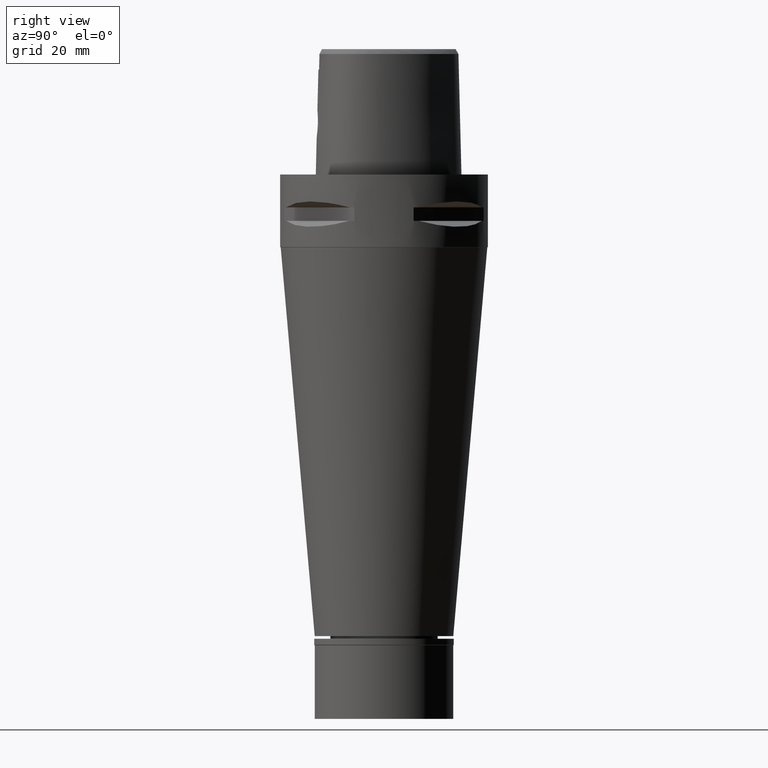
[diagram: clean part render]
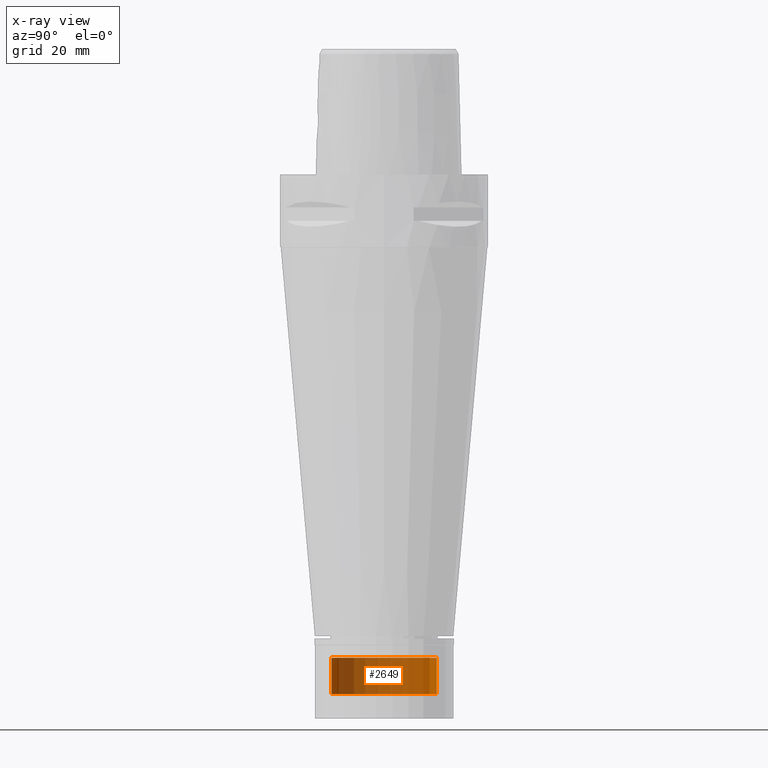
[diagram: x-ray — body ghosted, one internal face saturated and labeled with its STEP entity id]
A machine part, right view, then the same camera in x-ray: the body is ghosted and one INTERNAL B-rep face — a face not visible from any outside direction — is saturated and labeled: STEP entity #2649.
In plain terms, the highlighted cylindrical surface (partial cylindrical patch) has radius 16 mm, axis along (0, 0, -1).
Its self-contained STEP definition (entity closure, byte-faithful):
#70 = DIRECTION ( 'NONE',  ( 0.0000000000000000000, 0.0000000000000000000, -1.000000000000000000 ) ) ;
#265 = FACE_OUTER_BOUND ( 'NONE', #2853, .T. ) ;
#269 = CARTESIAN_POINT ( 'NONE',  ( 0.0000000000000000000, 16.00000000000000000, -146.5000000000000000 ) ) ;
#456 = DIRECTION ( 'NONE',  ( 0.0000000000000000000, 0.0000000000000000000, -1.000000000000000000 ) ) ;
#507 = CARTESIAN_POINT ( 'NONE',  ( 0.0000000000000000000, -16.00000000000000000, -146.5000000000000000 ) ) ;
#867 = VERTEX_POINT ( 'NONE', #269 ) ;
#921 = AXIS2_PLACEMENT_3D ( 'NONE', #4977, #1461, #4211 ) ;
#961 = CARTESIAN_POINT ( 'NONE',  ( 0.0000000000000000000, -16.00000000000000000, -157.5000000000000000 ) ) ;
#1222 = DIRECTION ( 'NONE',  ( 0.0000000000000000000, -1.000000000000000000, 0.0000000000000000000 ) ) ;
#1226 = CARTESIAN_POINT ( 'NONE',  ( 0.0000000000000000000, 16.00000000000000000, -146.5000000000000000 ) ) ;
#1278 = LINE ( 'NONE', #4733, #4919 ) ;
#1401 = CIRCLE ( 'NONE', #921, 16.00000000000000000 ) ;
#1461 = DIRECTION ( 'NONE',  ( 0.0000000000000000000, 0.0000000000000000000, 1.000000000000000000 ) ) ;
#1518 = ORIENTED_EDGE ( 'NONE', *, *, #3871, .T. ) ;
#1896 = ORIENTED_EDGE ( 'NONE', *, *, #2799, .T. ) ;
#2032 = CARTESIAN_POINT ( 'NONE',  ( 0.0000000000000000000, 0.0000000000000000000, -146.5000000000000000 ) ) ;
#2057 = AXIS2_PLACEMENT_3D ( 'NONE', #2032, #456, #1222 ) ;
#2173 = EDGE_CURVE ( 'NONE', #2916, #3897, #1278, .T. ) ;
#2240 = VERTEX_POINT ( 'NONE', #2343 ) ;
#2312 = DIRECTION ( 'NONE',  ( 0.0000000000000000000, -1.000000000000000000, 0.0000000000000000000 ) ) ;
#2343 = CARTESIAN_POINT ( 'NONE',  ( 0.0000000000000000000, 16.00000000000000000, -157.5000000000000000 ) ) ;
#2442 = LINE ( 'NONE', #1226, #3697 ) ;
#2649 = ADVANCED_FACE ( 'NONE', ( #265 ), #4263, .T. ) ;
#2799 = EDGE_CURVE ( 'NONE', #2240, #3897, #1401, .T. ) ;
#2853 = EDGE_LOOP ( 'NONE', ( #1896, #4458, #4813, #1518 ) ) ;
#2916 = VERTEX_POINT ( 'NONE', #507 ) ;
#2967 = EDGE_CURVE ( 'NONE', #2916, #867, #4184, .T. ) ;
#3555 = DIRECTION ( 'NONE',  ( 0.0000000000000000000, 0.0000000000000000000, -1.000000000000000000 ) ) ;
#3697 = VECTOR ( 'NONE', #70, 1000.000000000000000 ) ;
#3871 = EDGE_CURVE ( 'NONE', #867, #2240, #2442, .T. ) ;
#3883 = DIRECTION ( 'NONE',  ( 0.0000000000000000000, 0.0000000000000000000, -1.000000000000000000 ) ) ;
#3897 = VERTEX_POINT ( 'NONE', #961 ) ;
#4184 = CIRCLE ( 'NONE', #2057, 16.00000000000000000 ) ;
#4211 = DIRECTION ( 'NONE',  ( 0.0000000000000000000, 1.000000000000000000, 0.0000000000000000000 ) ) ;
#4263 = CYLINDRICAL_SURFACE ( 'NONE', #4504, 16.00000000000000000 ) ;
#4458 = ORIENTED_EDGE ( 'NONE', *, *, #2173, .F. ) ;
#4504 = AXIS2_PLACEMENT_3D ( 'NONE', #4646, #3883, #2312 ) ;
#4646 = CARTESIAN_POINT ( 'NONE',  ( 0.0000000000000000000, 0.0000000000000000000, 7.875000000000000000 ) ) ;
#4733 = CARTESIAN_POINT ( 'NONE',  ( 0.0000000000000000000, -16.00000000000000000, -146.5000000000000000 ) ) ;
#4813 = ORIENTED_EDGE ( 'NONE', *, *, #2967, .T. ) ;
#4919 = VECTOR ( 'NONE', #3555, 1000.000000000000000 ) ;
#4977 = CARTESIAN_POINT ( 'NONE',  ( 0.0000000000000000000, 0.0000000000000000000, -157.5000000000000000 ) ) ;